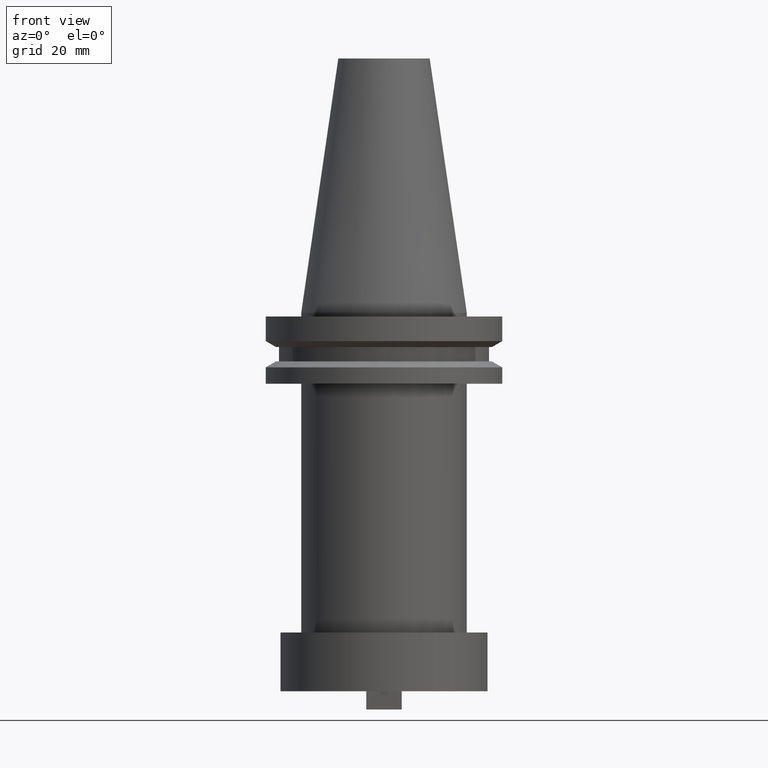
[diagram: clean part render]
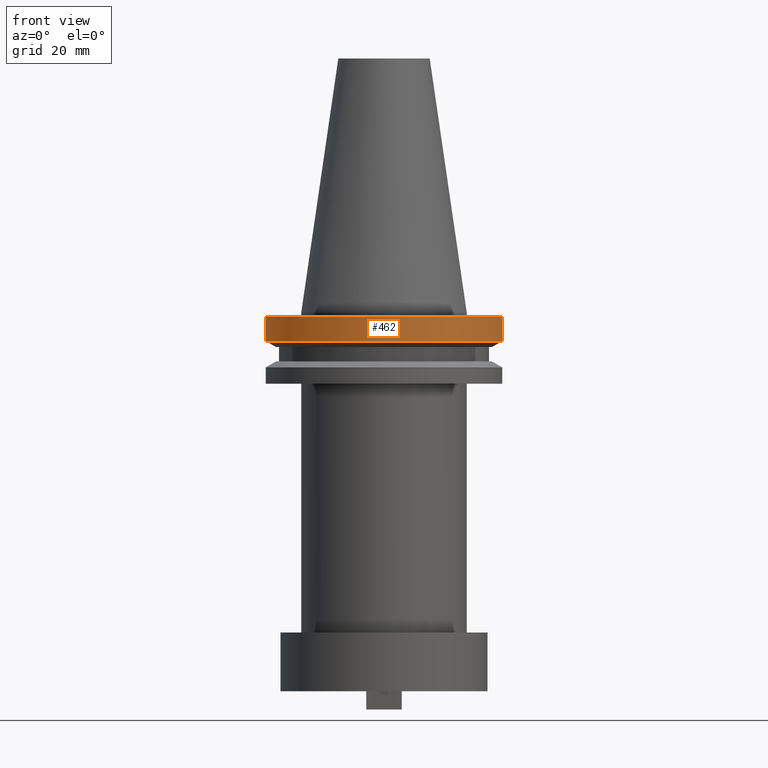
[diagram: same view with one face highlighted and labeled with its STEP entity id]
A machine part, front view. The second image highlights one B-rep face of the part: STEP entity #462.
In plain terms, the highlighted cylindrical surface (partial cylindrical patch) has radius 31.75 mm, axis along (-0, -0, 1).
Its self-contained STEP definition (entity closure, byte-faithful):
#28 = LINE ( 'NONE', #1048, #294 ) ;
#55 = CARTESIAN_POINT ( 'NONE',  ( -31.75000000000000000, 3.888253587292846476E-15, -7.605276606597335842 ) ) ;
#119 = EDGE_CURVE ( 'NONE', #959, #790, #470, .T. ) ;
#176 = ORIENTED_EDGE ( 'NONE', *, *, #119, .F. ) ;
#193 = CARTESIAN_POINT ( 'NONE',  ( 31.75000000000000000, 0.000000000000000000, -7.605276606597335842 ) ) ;
#236 = CIRCLE ( 'NONE', #561, 31.75000000000000000 ) ;
#267 = EDGE_CURVE ( 'NONE', #1012, #277, #236, .T. ) ;
#277 = VERTEX_POINT ( 'NONE', #193 ) ;
#278 = DIRECTION ( 'NONE',  ( 1.000000000000000000, 0.000000000000000000, 0.000000000000000000 ) ) ;
#294 = VECTOR ( 'NONE', #537, 1000.000000000000000 ) ;
#302 = CARTESIAN_POINT ( 'NONE',  ( -31.75000000000000000, 3.888253587292846476E-15, -1.000000000000000888 ) ) ;
#308 = DIRECTION ( 'NONE',  ( -0.000000000000000000, -0.000000000000000000, 1.000000000000000000 ) ) ;
#351 = EDGE_LOOP ( 'NONE', ( #1051, #430, #1039, #176 ) ) ;
#380 = EDGE_CURVE ( 'NONE', #277, #790, #28, .T. ) ;
#405 = DIRECTION ( 'NONE',  ( 1.000000000000000000, 0.000000000000000000, 0.000000000000000000 ) ) ;
#430 = ORIENTED_EDGE ( 'NONE', *, *, #267, .T. ) ;
#431 = DIRECTION ( 'NONE',  ( -0.000000000000000000, -0.000000000000000000, 1.000000000000000000 ) ) ;
#462 = ADVANCED_FACE ( 'NONE', ( #886 ), #1041, .T. ) ;
#470 = CIRCLE ( 'NONE', #1079, 31.75000000000000000 ) ;
#537 = DIRECTION ( 'NONE',  ( -0.000000000000000000, -0.000000000000000000, 1.000000000000000000 ) ) ;
#561 = AXIS2_PLACEMENT_3D ( 'NONE', #858, #431, #278 ) ;
#564 = CARTESIAN_POINT ( 'NONE',  ( 0.000000000000000000, 0.000000000000000000, 68.25000000000000000 ) ) ;
#569 = VECTOR ( 'NONE', #607, 1000.000000000000000 ) ;
#607 = DIRECTION ( 'NONE',  ( -0.000000000000000000, -0.000000000000000000, 1.000000000000000000 ) ) ;
#648 = DIRECTION ( 'NONE',  ( -0.000000000000000000, -0.000000000000000000, 1.000000000000000000 ) ) ;
#687 = EDGE_CURVE ( 'NONE', #1012, #959, #1089, .T. ) ;
#790 = VERTEX_POINT ( 'NONE', #1040 ) ;
#850 = CARTESIAN_POINT ( 'NONE',  ( -31.75000000000000000, 3.888253587292846476E-15, 68.25000000000000000 ) ) ;
#858 = CARTESIAN_POINT ( 'NONE',  ( 0.000000000000000000, 0.000000000000000000, -7.605276606597335842 ) ) ;
#868 = AXIS2_PLACEMENT_3D ( 'NONE', #564, #308, #1034 ) ;
#886 = FACE_OUTER_BOUND ( 'NONE', #351, .T. ) ;
#900 = CARTESIAN_POINT ( 'NONE',  ( 0.000000000000000000, 0.000000000000000000, -1.000000000000000888 ) ) ;
#959 = VERTEX_POINT ( 'NONE', #302 ) ;
#1012 = VERTEX_POINT ( 'NONE', #55 ) ;
#1034 = DIRECTION ( 'NONE',  ( 1.000000000000000000, 0.000000000000000000, 0.000000000000000000 ) ) ;
#1039 = ORIENTED_EDGE ( 'NONE', *, *, #380, .T. ) ;
#1040 = CARTESIAN_POINT ( 'NONE',  ( 31.75000000000000000, 0.000000000000000000, -1.000000000000000888 ) ) ;
#1041 = CYLINDRICAL_SURFACE ( 'NONE', #868, 31.75000000000000000 ) ;
#1048 = CARTESIAN_POINT ( 'NONE',  ( 31.75000000000000000, 0.000000000000000000, 68.25000000000000000 ) ) ;
#1051 = ORIENTED_EDGE ( 'NONE', *, *, #687, .F. ) ;
#1079 = AXIS2_PLACEMENT_3D ( 'NONE', #900, #648, #405 ) ;
#1089 = LINE ( 'NONE', #850, #569 ) ;